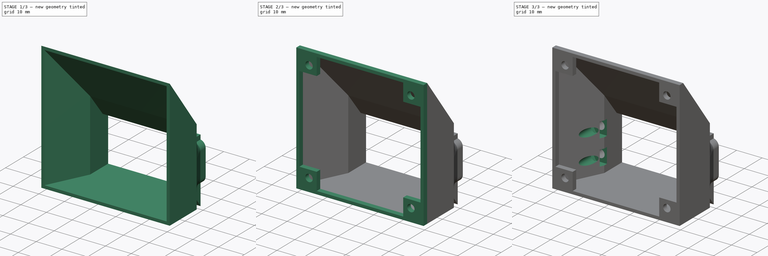
[diagram: build sequence overview — one tinted view per stage of 3, left to right]
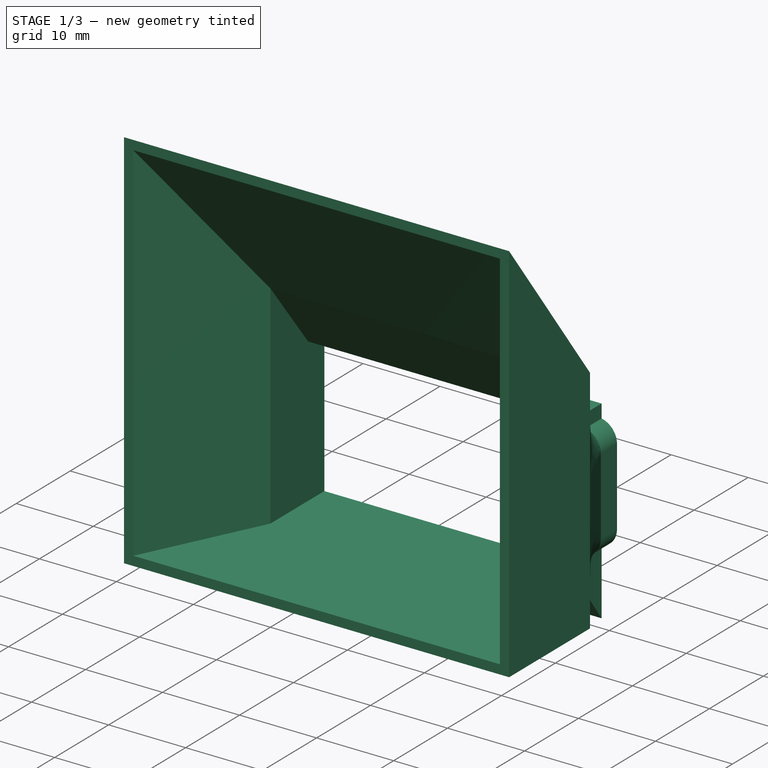
[diagram: stage 1 of 3 — iso view after this stage's code; geometry added in this stage tinted green]
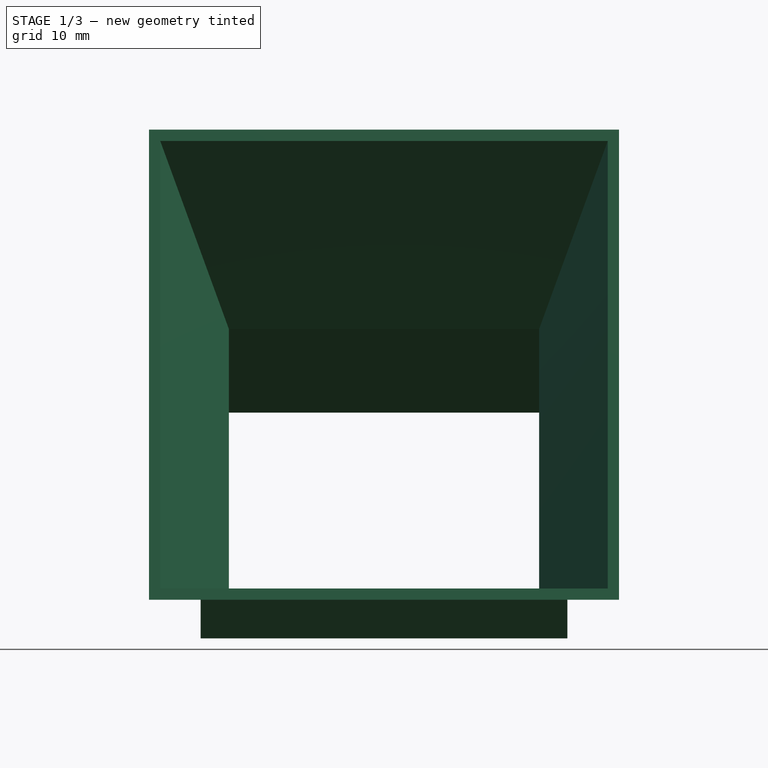
[diagram: stage 1 of 3 — front view after this stage's code; geometry added in this stage tinted green]
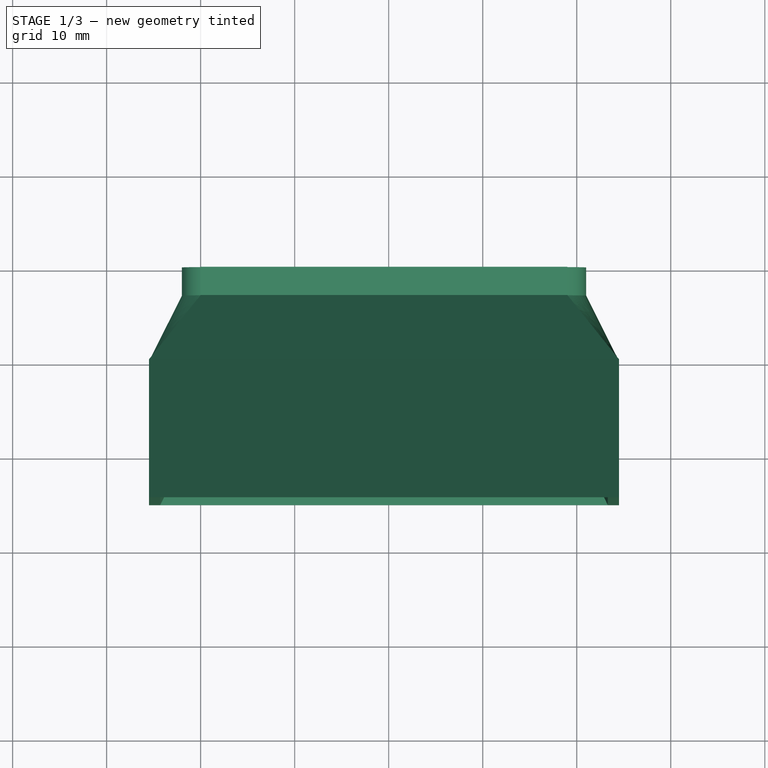
[diagram: stage 1 of 3 — top view after this stage's code; geometry added in this stage tinted green]
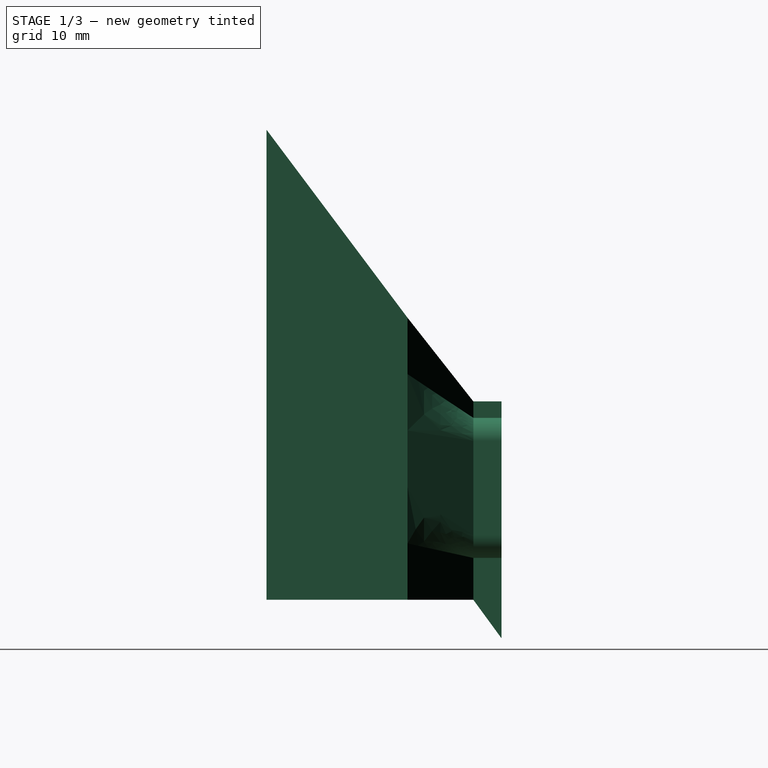
[diagram: stage 1 of 3 — right view after this stage's code; geometry added in this stage tinted green]
FCSTD DOCUMENT  (FreeCAD 0.18R14090 (Git))
Label: HotendClippingMainFan50x50
License: All rights reserved
LicenseURL: http://en.wikipedia.org/wiki/All_rights_reserved
objects: Sketcher::SketchObject×9, PartDesign::Plane×4, PartDesign::AdditiveLoft×3, PartDesign::Pocket×2, PartDesign::Body×1, App::Part×1
note: 24 computed .brp shape members not serialized (recipe doc carries the construction recipe); baked Part::Feature solids carry a one-line shape summary decoded from their .brp

FEATURE [Sketcher::SketchObject] Sketch  label="BaseSketch"
  MapMode = 5
  Placement = pos=(0,0,0) rot=(1,0,0;1.5708rad)
  Support = -> [XZ_Plane001]
  sketch-geometry (31):
    g0: LineSegment StartX=0 StartY=0 StartZ=0 EndX=39 EndY=0 EndZ=0
    g1: LineSegment StartX=39 StartY=25.2 StartZ=0 EndX=0 EndY=25.2 EndZ=0
    g2: LineSegment StartX=3 StartY=24 StartZ=0 EndX=36 EndY=24 EndZ=0
    g3: LineSegment StartX=36 StartY=24 StartZ=0 EndX=36 EndY=5.3 EndZ=0
    g4: LineSegment StartX=36 StartY=5.3 StartZ=0 EndX=3 EndY=5.3 EndZ=0
    g5: LineSegment StartX=3 StartY=5.3 StartZ=0 EndX=3 EndY=24 EndZ=0
    g6: LineSegment [constr] StartX=3 StartY=24 StartZ=0 EndX=0 EndY=24 EndZ=0
    g7: LineSegment [constr] StartX=36 StartY=24 StartZ=0 EndX=39 EndY=24 EndZ=0
    g8: Circle CenterX=0.5 CenterY=21 CenterZ=0 NormalX=0 NormalY=0 NormalZ=1 AngleXU=0 Radius=1.6
    g9: Circle CenterX=0.5 CenterY=11 CenterZ=0 NormalX=0 NormalY=0 NormalZ=1 AngleXU=0 Radius=1.6
    g10: LineSegment [constr] StartX=0.5 StartY=21 StartZ=0 EndX=0.5 EndY=11 EndZ=0
    g11: LineSegment [constr] StartX=0.5 StartY=11 StartZ=0 EndX=0.5 EndY=0 EndZ=0
    g12: LineSegment StartX=-2 StartY=21 StartZ=0 EndX=-2 EndY=11 EndZ=0
    g13: ArcOfCircle CenterX=0.5 CenterY=21 CenterZ=0 NormalX=0 NormalY=0 NormalZ=1 AngleXU=0 Radius=2.5 StartAngle=1.77215 EndAngle=3.14159
    g14: ArcOfCircle CenterX=0.5 CenterY=11 CenterZ=0 NormalX=0 NormalY=0 NormalZ=1 AngleXU=0 Radius=2.5 StartAngle=3.14159 EndAngle=4.51103
    g15: LineSegment StartX=0 StartY=25.2 StartZ=0 EndX=0 EndY=23.4495 EndZ=0
    g16: LineSegment StartX=0 StartY=8.55051 StartZ=0 EndX=0 EndY=0 EndZ=0
    g17: LineSegment [constr] StartX=0.5 StartY=21 StartZ=0 EndX=3 EndY=21 EndZ=0
    g18: LineSegment [constr] StartX=0.5 StartY=21 StartZ=0 EndX=-2 EndY=21 EndZ=0
    g19: Circle CenterX=38.5 CenterY=21 CenterZ=0 NormalX=0 NormalY=0 NormalZ=1 AngleXU=0 Radius=1.6
    g20: Circle CenterX=38.5 CenterY=11 CenterZ=0 NormalX=0 NormalY=0 NormalZ=1 AngleXU=0 Radius=1.6
    g21: LineSegment [constr] StartX=38.5 StartY=11 StartZ=0 EndX=38.5 EndY=21 EndZ=0
    g22: LineSegment StartX=41 StartY=21 StartZ=0 EndX=41 EndY=11 EndZ=0
    g23: LineSegment StartX=39 StartY=25.2 StartZ=0 EndX=39 EndY=23.4495 EndZ=0
    g24: LineSegment StartX=39 StartY=0 StartZ=0 EndX=39 EndY=8.55051 EndZ=0
    g25: ArcOfCircle CenterX=38.5 CenterY=21 CenterZ=0 NormalX=0 NormalY=0 NormalZ=1 AngleXU=0 Radius=2.5 StartAngle=0 EndAngle=1.36944
    g26: ArcOfCircle CenterX=38.5 CenterY=11 CenterZ=0 NormalX=0 NormalY=0 NormalZ=1 AngleXU=0 Radius=2.5 StartAngle=4.91375 EndAngle=6.28319
    g27: LineSegment [constr] StartX=0.5 StartY=11 StartZ=0 EndX=38.5 EndY=11 EndZ=0
    g28: LineSegment [constr] StartX=38.5 StartY=21 StartZ=0 EndX=36 EndY=21 EndZ=0
    g29: LineSegment [constr] StartX=38.5 StartY=21 StartZ=0 EndX=41 EndY=21 EndZ=0
    g30: LineSegment [constr] StartX=39 StartY=23.4495 StartZ=0 EndX=39 EndY=8.55051 EndZ=0
  constraints (86):
    c: Horizontal(g0)
    c: Horizontal(g1)
    c: Coincident(g0,g-1)
    c: Distance(g1) = 39
    c: Coincident(g2,g3)
    c: Coincident(g3,g4)
    c: Coincident(g4,g5)
    c: Coincident(g5,g2)
    c: Horizontal(g2)
    c: Horizontal(g4)
    c: Vertical(g3)
    c: Vertical(g5)
    c: Distance(g4) = 33
    c: Coincident(g6,g2)
    c: Horizontal(g6)
    c: Coincident(g7,g2)
    c: Horizontal(g7)
    c: Equal(g7,g6)
    c: Distance(g4,g0) = 5.3
    c: Distance(g2,g1) = 1.2
    c: Coincident(g10,g8)
    c: Coincident(g10,g9)
    c: Vertical(g10)
    c: Coincident(g11,g9)
    c: PointOnObject(g11,g0)
    c: Vertical(g11)
    c: Distance(g11) = 11
    c: Distance(g10) = 10
    c: Vertical(g12)
    c: Distance(g12,g5) = 5
    c: Coincident(g13,g8)
    c: Coincident(g13,g12)
    c: Coincident(g14,g9)
    c: Coincident(g14,g12)
    c: Coincident(g15,g1)
    c: Coincident(g15,g13)
    c: Coincident(g16,g14)
    c: Coincident(g16,g0)
    c: Vertical(g16)
    c: Vertical(g15)
    c: Coincident(g17,g8)
    c: PointOnObject(g17,g5)
    c: Horizontal(g17)
    c: Coincident(g18,g8)
    c: Horizontal(g18)
    c: PointOnObject(g13,g-2)
    c: Equal(g18,g17)
    c: PointOnObject(g6,g15)
    c: Equal(g13,g14)
    c: Coincident(g12,g18)
    c: Equal(g9,g8)
    c: Radius(g8) = 1.6
    c: Coincident(g21,g20)
    c: Coincident(g21,g19)
    c: Vertical(g21)
    c: Vertical(g22)
    c: Coincident(g23,g1)
    c: Vertical(g23)
    c: Coincident(g24,g0)
    c: Vertical(g24)
    c: Equal(g20,g19)
    c: Equal(g19,g8)
    c: Coincident(g25,g19)
    c: Coincident(g25,g23)
    c: Coincident(g25,g22)
    c: Coincident(g26,g20)
    c: Coincident(g26,g22)
    c: Coincident(g26,g24)
    c: Equal(g21,g10)
    c: Coincident(g27,g9)
    c: Coincident(g27,g20)
    c: Horizontal(g27)
    c: Coincident(g28,g19)
    c: PointOnObject(g28,g3)
    c: Horizontal(g28)
    c: Coincident(g29,g19)
    c: Horizontal(g29)
    c: Equal(g28,g29)
    c: Equal(g25,g26)
    c: Coincident(g22,g29)
    c: PointOnObject(g7,g23)
    c: Distance(g1,g0) = 25.2
    c: Distance(g28,g22) = 5
    c: Coincident(g30,g23)
    c: Coincident(g30,g24)
    c: Vertical(g30)
FEATURE [PartDesign::Plane] DatumPlane  label="Interface1Plane"
  AttachmentOffset = pos=(0,0,3) rot=(0,0,1;0rad)
  MapMode = 5
  Placement = pos=(0,-3,0) rot=(1,0,0;1.5708rad)
  Support = -> [XZ_Plane001]
FEATURE [PartDesign::Plane] DatumPlane001  label="Interface2Plane"
  AttachmentOffset = pos=(-5.5,0,10) rot=(0,0,1;0rad)
  MapMode = 5
  Placement = pos=(-5.5,-10,-1e-12) rot=(1,0,0;1.5708rad)
  Support = -> [XZ_Plane001]
FEATURE [Sketcher::SketchObject] Sketch001  label="Interface1Sketch"
  MapMode = 5
  Placement = pos=(0,-3,0) rot=(1,0,0;1.5708rad)
  Support = -> [DatumPlane]
  sketch-geometry (31):
    g0: LineSegment StartX=39 StartY=25.2 StartZ=0 EndX=1e-12 EndY=25.2 EndZ=0
    g1: LineSegment StartX=3 StartY=24 StartZ=0 EndX=36 EndY=24 EndZ=0
    g2: LineSegment StartX=36 StartY=24 StartZ=0 EndX=36 EndY=5.3 EndZ=0
    g3: LineSegment StartX=36 StartY=5.3 StartZ=0 EndX=3 EndY=5.3 EndZ=0
    g4: LineSegment StartX=3 StartY=5.3 StartZ=0 EndX=3 EndY=24 EndZ=0
    g5: LineSegment [constr] StartX=3 StartY=24 StartZ=0 EndX=0 EndY=24 EndZ=0
    g6: LineSegment [constr] StartX=36 StartY=24 StartZ=0 EndX=39 EndY=24 EndZ=0
    g7: Circle CenterX=0.5 CenterY=21 CenterZ=0 NormalX=0 NormalY=0 NormalZ=1 AngleXU=0 Radius=1.6
    g8: Circle CenterX=0.5 CenterY=11 CenterZ=0 NormalX=0 NormalY=0 NormalZ=1 AngleXU=0 Radius=1.6
    g9: LineSegment [constr] StartX=0.5 StartY=21 StartZ=0 EndX=0.5 EndY=11 EndZ=0
    g10: LineSegment [constr] StartX=0.5 StartY=11 StartZ=0 EndX=0.5 EndY=0 EndZ=0
    g11: LineSegment StartX=-2 StartY=21 StartZ=0 EndX=-2 EndY=11 EndZ=0
    g12: ArcOfCircle CenterX=0.5 CenterY=21 CenterZ=0 NormalX=0 NormalY=0 NormalZ=1 AngleXU=0 Radius=2.5 StartAngle=1.77215 EndAngle=3.14159
    g13: ArcOfCircle CenterX=0.5 CenterY=11 CenterZ=0 NormalX=0 NormalY=0 NormalZ=1 AngleXU=0 Radius=2.5 StartAngle=3.14159 EndAngle=4.51103
    g14: LineSegment StartX=1e-12 StartY=25.2 StartZ=0 EndX=1e-12 EndY=23.4495 EndZ=0
    g15: LineSegment StartX=0 StartY=8.55051 StartZ=0 EndX=0 EndY=4.1 EndZ=0
    g16: LineSegment [constr] StartX=0.5 StartY=21 StartZ=0 EndX=3 EndY=21 EndZ=0
    g17: LineSegment [constr] StartX=0.5 StartY=21 StartZ=0 EndX=-2 EndY=21 EndZ=0
    g18: Circle CenterX=38.5 CenterY=21 CenterZ=0 NormalX=0 NormalY=0 NormalZ=1 AngleXU=0 Radius=1.6
    g19: Circle CenterX=38.5 CenterY=11 CenterZ=0 NormalX=0 NormalY=0 NormalZ=1 AngleXU=0 Radius=1.6
    g20: LineSegment [constr] StartX=38.5 StartY=11 StartZ=0 EndX=38.5 EndY=21 EndZ=0
    g21: LineSegment StartX=41 StartY=21 StartZ=0 EndX=41 EndY=11 EndZ=0
    g22: LineSegment StartX=39 StartY=25.2 StartZ=0 EndX=39 EndY=23.4495 EndZ=0
    g23: LineSegment StartX=39 StartY=4.1 StartZ=0 EndX=39 EndY=8.55051 EndZ=0
    g24: ArcOfCircle CenterX=38.5 CenterY=21 CenterZ=0 NormalX=0 NormalY=0 NormalZ=1 AngleXU=0 Radius=2.5 StartAngle=0 EndAngle=1.36944
    g25: ArcOfCircle CenterX=38.5 CenterY=11 CenterZ=0 NormalX=0 NormalY=0 NormalZ=1 AngleXU=0 Radius=2.5 StartAngle=4.91375 EndAngle=6.28319
    g26: LineSegment [constr] StartX=0.5 StartY=11 StartZ=0 EndX=38.5 EndY=11 EndZ=0
    g27: LineSegment [constr] StartX=38.5 StartY=21 StartZ=0 EndX=36 EndY=21 EndZ=0
    g28: LineSegment [constr] StartX=38.5 StartY=21 StartZ=0 EndX=41 EndY=21 EndZ=0
    g29: LineSegment [constr] StartX=39 StartY=23.4495 StartZ=0 EndX=39 EndY=8.55051 EndZ=0
    g30: LineSegment StartX=0 StartY=4.1 StartZ=0 EndX=39 EndY=4.1 EndZ=0
  constraints (87):
    c: Horizontal(g0)
    c: Distance(g0) = 39
    c: Coincident(g1,g2)
    c: Coincident(g2,g3)
    c: Coincident(g3,g4)
    c: Coincident(g4,g1)
    c: Horizontal(g1)
    c: Horizontal(g3)
    c: Vertical(g2)
    c: Vertical(g4)
    c: Distance(g3) = 33
    c: Coincident(g5,g1)
    c: Horizontal(g5)
    c: Coincident(g6,g1)
    c: Horizontal(g6)
    c: Equal(g6,g5)
    c: Distance(g1,g0) = 1.2
    c: Coincident(g9,g7)
    c: Coincident(g9,g8)
    c: Vertical(g9)
    c: Coincident(g10,g8)
    c: Vertical(g10)
    c: Distance(g9) = 10
    c: Vertical(g11)
    c: Distance(g11,g4) = 5
    c: Coincident(g12,g7)
    c: Coincident(g12,g11)
    c: Coincident(g13,g8)
    c: Coincident(g13,g11)
    c: Coincident(g14,g0)
    c: Coincident(g14,g12)
    c: Coincident(g15,g13)
    c: Vertical(g15)
    c: Vertical(g14)
    c: Coincident(g16,g7)
    c: PointOnObject(g16,g4)
    c: Horizontal(g16)
    c: Coincident(g17,g7)
    c: Horizontal(g17)
    c: PointOnObject(g12,g-2)
    c: Equal(g17,g16)
    c: PointOnObject(g5,g14)
    c: Equal(g12,g13)
    c: Coincident(g11,g17)
    c: Equal(g8,g7)
    c: Radius(g7) = 1.6
    c: Coincident(g20,g19)
    c: Coincident(g20,g18)
    c: Vertical(g20)
    c: Vertical(g21)
    c: Coincident(g22,g0)
    c: Vertical(g22)
    c: Vertical(g23)
    c: Equal(g19,g18)
    c: Equal(g18,g7)
    c: Coincident(g24,g18)
    c: Coincident(g24,g22)
    c: Coincident(g24,g21)
    c: Coincident(g25,g19)
    c: Coincident(g25,g21)
    c: Coincident(g25,g23)
    c: Equal(g20,g9)
    c: Coincident(g26,g8)
    c: Coincident(g26,g19)
    c: Horizontal(g26)
    c: Coincident(g27,g18)
    c: PointOnObject(g27,g2)
    c: Horizontal(g27)
    c: Coincident(g28,g18)
    c: Horizontal(g28)
    c: Equal(g27,g28)
    c: Equal(g24,g25)
    c: Coincident(g21,g28)
    c: PointOnObject(g6,g22)
    c: Distance(g27,g21) = 5
    c: Coincident(g29,g22)
    c: Coincident(g29,g23)
    c: Vertical(g29)
    c: Horizontal(g30)
    c: Distance(g3,g30) = 1.2
    c: Coincident(g23,g30)
    c: Coincident(g15,g30)
    c: DistanceY(g-1,g0) = 25.2
    c: PointOnObject(g15,g-2)
    c: DistanceY(g-1,g8) = 11
    c: DistanceY(g-1,g3) = 5.3
    c: PointOnObject(g10,g-1)
FEATURE [Sketcher::SketchObject] Sketch002  label="Interface2Sketch"
  MapMode = 5
  Placement = pos=(-5.5,-10,-1e-12) rot=(1,0,0;1.5708rad)
  Support = -> [DatumPlane001]
  sketch-geometry (28):
    g0: LineSegment StartX=50 StartY=34.1 StartZ=0 EndX=0 EndY=34.1 EndZ=0
    g1: LineSegment StartX=8.5 StartY=32.9 StartZ=0 EndX=41.5 EndY=32.9 EndZ=0
    g2: LineSegment StartX=41.5 StartY=32.9 StartZ=0 EndX=41.5 EndY=5.3 EndZ=0
    g3: LineSegment StartX=41.5 StartY=5.3 StartZ=0 EndX=8.5 EndY=5.3 EndZ=0
    g4: LineSegment StartX=8.5 StartY=5.3 StartZ=0 EndX=8.5 EndY=32.9 EndZ=0
    g5: LineSegment [constr] StartX=8.5 StartY=32.9 StartZ=0 EndX=0 EndY=32.9 EndZ=0
    g6: LineSegment [constr] StartX=41.5 StartY=32.9 StartZ=0 EndX=50 EndY=32.9 EndZ=0
    g7: Circle CenterX=6 CenterY=21 CenterZ=0 NormalX=0 NormalY=0 NormalZ=1 AngleXU=0 Radius=1.6
    g8: Circle CenterX=6 CenterY=11 CenterZ=0 NormalX=0 NormalY=0 NormalZ=1 AngleXU=0 Radius=1.6
    g9: LineSegment [constr] StartX=6 StartY=21 StartZ=0 EndX=6 EndY=11 EndZ=0
    g10: LineSegment [constr] StartX=6 StartY=11 StartZ=0 EndX=6 EndY=0 EndZ=0
    g11: LineSegment StartX=0 StartY=22.1 StartZ=0 EndX=0 EndY=16.1 EndZ=0
    g12: LineSegment StartX=0 StartY=34.1 StartZ=0 EndX=0 EndY=28.1 EndZ=0
    g13: LineSegment StartX=0 StartY=10.1 StartZ=0 EndX=0 EndY=4.1 EndZ=0
    g14: LineSegment [constr] StartX=6 StartY=21 StartZ=0 EndX=8.5 EndY=21 EndZ=0
    g15: Circle CenterX=44 CenterY=21 CenterZ=0 NormalX=0 NormalY=0 NormalZ=1 AngleXU=0 Radius=1.6
    g16: Circle CenterX=44 CenterY=11 CenterZ=0 NormalX=0 NormalY=0 NormalZ=1 AngleXU=0 Radius=1.6
    g17: LineSegment [constr] StartX=44 StartY=11 StartZ=0 EndX=44 EndY=21 EndZ=0
    g18: LineSegment StartX=50 StartY=22.1 StartZ=0 EndX=50 EndY=16.1 EndZ=0
    g19: LineSegment StartX=50 StartY=34.1 StartZ=0 EndX=50 EndY=28.1 EndZ=0
    g20: LineSegment StartX=50 StartY=4.1 StartZ=0 EndX=50 EndY=10.1 EndZ=0
    g21: LineSegment [constr] StartX=6 StartY=11 StartZ=0 EndX=44 EndY=11 EndZ=0
    g22: LineSegment [constr] StartX=44 StartY=21 StartZ=0 EndX=41.5 EndY=21 EndZ=0
    g23: LineSegment StartX=0 StartY=4.1 StartZ=0 EndX=50 EndY=4.1 EndZ=0
    g24: LineSegment StartX=50 StartY=28.1 StartZ=0 EndX=50 EndY=22.1 EndZ=0
    g25: LineSegment StartX=50 StartY=16.1 StartZ=0 EndX=50 EndY=10.1 EndZ=0
    g26: LineSegment StartX=0 StartY=10.1 StartZ=0 EndX=0 EndY=16.1 EndZ=0
    g27: LineSegment StartX=0 StartY=22.1 StartZ=0 EndX=0 EndY=28.1 EndZ=0
  constraints (81):
    c: Horizontal(g0)
    c: Distance(g0) = 50
    c: Coincident(g1,g2)
    c: Coincident(g2,g3)
    c: Coincident(g3,g4)
    c: Coincident(g4,g1)
    c: Horizontal(g1)
    c: Horizontal(g3)
    c: Vertical(g2)
    c: Vertical(g4)
    c: Distance(g3) = 33
    c: Coincident(g5,g1)
    c: Horizontal(g5)
    c: Coincident(g6,g1)
    c: Horizontal(g6)
    c: Equal(g6,g5)
    c: Distance(g1,g0) = 1.2
    c: Coincident(g9,g7)
    c: Coincident(g9,g8)
    c: Vertical(g9)
    c: Coincident(g10,g8)
    c: Vertical(g10)
    c: Distance(g9) = 10
    c: Coincident(g12,g0)
    c: Vertical(g13)
    c: Vertical(g12)
    c: Coincident(g14,g7)
    c: PointOnObject(g14,g4)
    c: Horizontal(g14)
    c: PointOnObject(g12,g-2)
    c: PointOnObject(g5,g12)
    c: Equal(g8,g7)
    c: Radius(g7) = 1.6
    c: Coincident(g17,g16)
    c: Coincident(g17,g15)
    c: Vertical(g17)
    c: Coincident(g19,g0)
    c: Vertical(g19)
    c: Vertical(g20)
    c: Equal(g16,g15)
    c: Equal(g15,g7)
    c: Equal(g17,g9)
    c: Coincident(g21,g8)
    c: Coincident(g21,g16)
    c: Horizontal(g21)
    c: Coincident(g22,g15)
    c: PointOnObject(g22,g2)
    c: Horizontal(g22)
    c: PointOnObject(g6,g19)
    c: Horizontal(g23)
    c: Distance(g3,g23) = 1.2
    c: Coincident(g20,g23)
    c: Coincident(g13,g23)
    c: PointOnObject(g13,g-2)
    c: DistanceY(g-1,g8) = 11
    c: DistanceY(g-1,g3) = 5.3
    c: PointOnObject(g10,g-1)
    c: Equal(g22,g14)
    c: Distance(g22) = 2.5
    c: Coincident(g24,g19)
    c: Coincident(g24,g18)
    c: Coincident(g25,g18)
    c: Coincident(g25,g20)
    c: Coincident(g26,g13)
    c: Coincident(g26,g11)
    c: Coincident(g27,g11)
    c: Coincident(g27,g12)
    c: Equal(g19,g12)
    c: Equal(g12,g27)
    c: Equal(g27,g24)
    c: Equal(g24,g18)
    c: Equal(g18,g25)
    c: Equal(g25,g20)
    c: Equal(g20,g13)
    c: Equal(g13,g26)
    c: Equal(g26,g11)
    c: Vertical(g18)
    c: Vertical(g11)
    c: Vertical(g25)
    c: Vertical(g26)
    c: Distance(g0,g20) = 30
FEATURE [PartDesign::AdditiveLoft] AdditiveLoft  label="BaseLoft"
  Closed = false
  Placement = pos=(0,0,0) rot=(1,0,0;1.5708rad)
  Profile = -> Sketch
  Ruled = true
  Sections = -> [Sketch001,Sketch002]
FEATURE [Sketcher::SketchObject] Sketch003  label="Interface3Sketch"
  ExternalGeometry = -> [Sketch002]
  MapMode = 5
  Placement = pos=(-5.5,-10,-1e-12) rot=(1,0,0;1.5708rad)
  Support = -> [DatumPlane001]
  sketch-geometry (8):
    g0: LineSegment StartX=8.5 StartY=32.9 StartZ=0 EndX=41.5 EndY=32.9 EndZ=0
    g1: LineSegment StartX=41.5 StartY=5.3 StartZ=0 EndX=8.5 EndY=5.3 EndZ=0
    g2: LineSegment StartX=0 StartY=4.1 StartZ=0 EndX=0 EndY=34.1 EndZ=0
    g3: LineSegment StartX=0 StartY=34.1 StartZ=0 EndX=50 EndY=34.1 EndZ=0
    g4: LineSegment StartX=50 StartY=34.1 StartZ=0 EndX=50 EndY=4.1 EndZ=0
    g5: LineSegment StartX=50 StartY=4.1 StartZ=0 EndX=0 EndY=4.1 EndZ=0
    g6: LineSegment StartX=8.5 StartY=32.9 StartZ=0 EndX=8.5 EndY=5.3 EndZ=0
    g7: LineSegment StartX=41.5 StartY=5.3 StartZ=0 EndX=41.5 EndY=32.9 EndZ=0
  constraints (16):
    c: Coincident(g0,g-6)
    c: Coincident(g0,g-8)
    c: Coincident(g1,g-8)
    c: Coincident(g1,g-7)
    c: Coincident(g2,g-4)
    c: Coincident(g2,g-3)
    c: Coincident(g3,g2)
    c: Coincident(g3,g-3)
    c: Coincident(g4,g3)
    c: Coincident(g4,g-4)
    c: Coincident(g5,g4)
    c: Coincident(g5,g2)
    c: Coincident(g6,g0)
    c: Coincident(g6,g1)
    c: Coincident(g7,g1)
    c: Coincident(g7,g0)
FEATURE [PartDesign::Plane] DatumPlane002  label="Interface3Plane"
  AttachmentOffset = pos=(-5.5,0,25) rot=(0,0,1;0rad)
  MapMode = 5
  Placement = pos=(-5.5,-25,-3e-12) rot=(1,0,0;1.5708rad)
  Support = -> [XZ_Plane001]
FEATURE [PartDesign::Plane] DatumPlane003  label="Interface4Plane"
  AttachmentOffset = pos=(-5.5,0,27) rot=(0,0,1;0rad)
  MapMode = 5
  Placement = pos=(-5.5,-27,-3e-12) rot=(1,0,0;1.5708rad)
  Support = -> [XZ_Plane001]
FEATURE [Sketcher::SketchObject] Sketch007  label="Interface4Sketch"
  ExternalGeometry = -> [Sketch002]
  MapMode = 5
  Placement = pos=(-5.5,-25,-3e-12) rot=(1,0,0;1.5708rad)
  Support = -> [DatumPlane002]
  sketch-geometry (12):
    g0: LineSegment StartX=48.8 StartY=5.3 StartZ=0 EndX=1.2 EndY=5.3 EndZ=0
    g1: LineSegment StartX=0 StartY=4.1 StartZ=0 EndX=0 EndY=54.1 EndZ=0
    g2: LineSegment StartX=0 StartY=54.1 StartZ=0 EndX=50 EndY=54.1 EndZ=0
    g3: LineSegment StartX=50 StartY=54.1 StartZ=0 EndX=50 EndY=4.1 EndZ=0
    g4: LineSegment StartX=50 StartY=4.1 StartZ=0 EndX=0 EndY=4.1 EndZ=0
    g5: LineSegment StartX=1.2 StartY=52.9 StartZ=0 EndX=1.2 EndY=5.3 EndZ=0
    g6: LineSegment StartX=48.8 StartY=5.3 StartZ=0 EndX=48.8 EndY=52.9 EndZ=0
    g7: LineSegment [constr] StartX=48.8 StartY=5.3 StartZ=0 EndX=48.8 EndY=4.1 EndZ=0
    g8: LineSegment [constr] StartX=48.8 StartY=52.9 StartZ=0 EndX=48.8 EndY=54.1 EndZ=0
    g9: LineSegment StartX=1.2 StartY=52.9 StartZ=0 EndX=48.8 EndY=52.9 EndZ=0
    g10: LineSegment [constr] StartX=48.8 StartY=5.3 StartZ=0 EndX=50 EndY=5.3 EndZ=0
    g11: LineSegment [constr] StartX=1.2 StartY=5.3 StartZ=0 EndX=0 EndY=5.3 EndZ=0
  constraints (34):
    c: Coincident(g1,g-3)
    c: Coincident(g2,g1)
    c: Coincident(g3,g2)
    c: Coincident(g3,g-3)
    c: Coincident(g4,g3)
    c: Coincident(g4,g1)
    c: Vertical(g3)
    c: Vertical(g1)
    c: Vertical(g6)
    c: Vertical(g5)
    c: Horizontal(g2)
    c: Distance(g3) = 50
    c: Coincident(g7,g0)
    c: PointOnObject(g7,g4)
    c: Vertical(g7)
    c: Vertical(g8)
    c: Equal(g7,g8)
    c: PointOnObject(g8,g2)
    c: PointOnObject(g0,g-4)
    c: Horizontal(g0)
    c: Coincident(g5,g0)
    c: Coincident(g0,g6)
    c: Coincident(g9,g5)
    c: Coincident(g9,g6)
    c: Horizontal(g9)
    c: Coincident(g8,g6)
    c: Coincident(g10,g0)
    c: PointOnObject(g10,g3)
    c: Horizontal(g10)
    c: Coincident(g11,g0)
    c: PointOnObject(g11,g1)
    c: Horizontal(g11)
    c: Equal(g11,g10)
    c: Equal(g10,g7)
FEATURE [Sketcher::SketchObject] Sketch008  label="Interface5Sketch"
  MapMode = 5
  Placement = pos=(-5.5,-25,-3e-12) rot=(1,0,0;1.5708rad)
  Support = -> [DatumPlane002]
  sketch-geometry (32):
    g0: LineSegment StartX=0 StartY=4.1 StartZ=0 EndX=0 EndY=54.1 EndZ=0
    g1: LineSegment StartX=0 StartY=54.1 StartZ=0 EndX=50 EndY=54.1 EndZ=0
    g2: LineSegment StartX=50 StartY=54.1 StartZ=0 EndX=50 EndY=4.1 EndZ=0
    g3: LineSegment StartX=50 StartY=4.1 StartZ=0 EndX=0 EndY=4.1 EndZ=0
    g4: Circle CenterX=5 CenterY=49.1 CenterZ=0 NormalX=0 NormalY=0 NormalZ=1 AngleXU=0 Radius=1.45
    g5: Circle CenterX=45 CenterY=49.1 CenterZ=0 NormalX=0 NormalY=0 NormalZ=1 AngleXU=0 Radius=1.45
    g6: Circle CenterX=45 CenterY=9.1 CenterZ=0 NormalX=0 NormalY=0 NormalZ=1 AngleXU=0 Radius=1.45
    g7: Circle CenterX=5 CenterY=9.1 CenterZ=0 NormalX=0 NormalY=0 NormalZ=1 AngleXU=0 Radius=1.45
    g8: LineSegment StartX=1.2 StartY=12.1 StartZ=0 EndX=8 EndY=12.1 EndZ=0
    g9: LineSegment StartX=8 StartY=12.1 StartZ=0 EndX=8 EndY=5.3 EndZ=0
    g10: LineSegment StartX=8 StartY=5.3 StartZ=0 EndX=42 EndY=5.3 EndZ=0
    g11: LineSegment StartX=42 StartY=5.3 StartZ=0 EndX=42 EndY=12.1 EndZ=0
    g12: LineSegment StartX=42 StartY=12.1 StartZ=0 EndX=48.8 EndY=12.1 EndZ=0
    g13: LineSegment StartX=48.8 StartY=12.1 StartZ=0 EndX=48.8 EndY=46.1 EndZ=0
    g14: LineSegment StartX=48.8 StartY=46.1 StartZ=0 EndX=42 EndY=46.1 EndZ=0
    g15: LineSegment StartX=42 StartY=46.1 StartZ=0 EndX=42 EndY=52.9 EndZ=0
    g16: LineSegment StartX=42 StartY=52.9 StartZ=0 EndX=8 EndY=52.9 EndZ=0
    g17: LineSegment StartX=8 StartY=52.9 StartZ=0 EndX=8 EndY=46.1 EndZ=0
    g18: LineSegment StartX=8 StartY=46.1 StartZ=0 EndX=1.2 EndY=46.1 EndZ=0
    g19: LineSegment StartX=1.2 StartY=46.1 StartZ=0 EndX=1.2 EndY=12.1 EndZ=0
    g20: LineSegment [constr] StartX=5 StartY=9.1 StartZ=0 EndX=0 EndY=9.1 EndZ=0
    g21: LineSegment [constr] StartX=5 StartY=9.1 StartZ=0 EndX=5 EndY=4.1 EndZ=0
    g22: LineSegment [constr] StartX=45 StartY=9.1 StartZ=0 EndX=45 EndY=4.1 EndZ=0
    g23: LineSegment [constr] StartX=45 StartY=9.1 StartZ=0 EndX=50 EndY=9.1 EndZ=0
    g24: LineSegment [constr] StartX=45 StartY=49.1 StartZ=0 EndX=45 EndY=54.1 EndZ=0
    g25: LineSegment [constr] StartX=45 StartY=49.1 StartZ=0 EndX=50 EndY=49.1 EndZ=0
    g26: LineSegment [constr] StartX=5 StartY=49.1 StartZ=0 EndX=0 EndY=49.1 EndZ=0
    g27: LineSegment [constr] StartX=5 StartY=49.1 StartZ=0 EndX=5 EndY=54.1 EndZ=0
    g28: LineSegment [constr] StartX=1.2 StartY=12.1 StartZ=0 EndX=0 EndY=12.1 EndZ=0
    g29: LineSegment [constr] StartX=8 StartY=5.3 StartZ=0 EndX=8 EndY=4.1 EndZ=0
    g30: LineSegment [constr] StartX=8 StartY=52.9 StartZ=0 EndX=8 EndY=54.1 EndZ=0
    g31: LineSegment [constr] StartX=5 StartY=9.1 StartZ=0 EndX=8 EndY=9.1 EndZ=0
FEATURE [Sketcher::SketchObject] Sketch009  label="Interface6Sketch"
  MapMode = 5
  Placement = pos=(-5.5,-27,-3e-12) rot=(1,0,0;1.5708rad)
  Support = -> [DatumPlane003]
  sketch-geometry (32):
    g0: LineSegment StartX=0 StartY=4.1 StartZ=0 EndX=0 EndY=54.1 EndZ=0
    g1: LineSegment StartX=0 StartY=54.1 StartZ=0 EndX=50 EndY=54.1 EndZ=0
    g2: LineSegment StartX=50 StartY=54.1 StartZ=0 EndX=50 EndY=4.1 EndZ=0
    g3: LineSegment StartX=50 StartY=4.1 StartZ=0 EndX=0 EndY=4.1 EndZ=0
    g4: Circle CenterX=5 CenterY=49.1 CenterZ=0 NormalX=0 NormalY=0 NormalZ=1 AngleXU=0 Radius=1.45
    g5: Circle CenterX=45 CenterY=49.1 CenterZ=0 NormalX=0 NormalY=0 NormalZ=1 AngleXU=0 Radius=1.45
    g6: Circle CenterX=45 CenterY=9.1 CenterZ=0 NormalX=0 NormalY=0 NormalZ=1 AngleXU=0 Radius=1.45
    g7: Circle CenterX=5 CenterY=9.1 CenterZ=0 NormalX=0 NormalY=0 NormalZ=1 AngleXU=0 Radius=1.45
    g8: LineSegment StartX=1.2 StartY=12.1 StartZ=0 EndX=8 EndY=12.1 EndZ=0
    g9: LineSegment StartX=8 StartY=12.1 StartZ=0 EndX=8 EndY=5.3 EndZ=0
    g10: LineSegment StartX=8 StartY=5.3 StartZ=0 EndX=42 EndY=5.3 EndZ=0
    g11: LineSegment StartX=42 StartY=5.3 StartZ=0 EndX=42 EndY=12.1 EndZ=0
    g12: LineSegment StartX=42 StartY=12.1 StartZ=0 EndX=48.8 EndY=12.1 EndZ=0
    g13: LineSegment StartX=48.8 StartY=12.1 StartZ=0 EndX=48.8 EndY=46.1 EndZ=0
    g14: LineSegment StartX=48.8 StartY=46.1 StartZ=0 EndX=42 EndY=46.1 EndZ=0
    g15: LineSegment StartX=42 StartY=46.1 StartZ=0 EndX=42 EndY=52.9 EndZ=0
    g16: LineSegment StartX=42 StartY=52.9 StartZ=0 EndX=8 EndY=52.9 EndZ=0
    g17: LineSegment StartX=8 StartY=52.9 StartZ=0 EndX=8 EndY=46.1 EndZ=0
    g18: LineSegment StartX=8 StartY=46.1 StartZ=0 EndX=1.2 EndY=46.1 EndZ=0
    g19: LineSegment StartX=1.2 StartY=46.1 StartZ=0 EndX=1.2 EndY=12.1 EndZ=0
    g20: LineSegment [constr] StartX=5 StartY=9.1 StartZ=0 EndX=0 EndY=9.1 EndZ=0
    g21: LineSegment [constr] StartX=5 StartY=9.1 StartZ=0 EndX=5 EndY=4.1 EndZ=0
    g22: LineSegment [constr] StartX=45 StartY=9.1 StartZ=0 EndX=45 EndY=4.1 EndZ=0
    g23: LineSegment [constr] StartX=45 StartY=9.1 StartZ=0 EndX=50 EndY=9.1 EndZ=0
    g24: LineSegment [constr] StartX=45 StartY=49.1 StartZ=0 EndX=45 EndY=54.1 EndZ=0
    g25: LineSegment [constr] StartX=45 StartY=49.1 StartZ=0 EndX=50 EndY=49.1 EndZ=0
    g26: LineSegment [constr] StartX=5 StartY=49.1 StartZ=0 EndX=0 EndY=49.1 EndZ=0
    g27: LineSegment [constr] StartX=5 StartY=49.1 StartZ=0 EndX=5 EndY=54.1 EndZ=0
    g28: LineSegment [constr] StartX=1.2 StartY=12.1 StartZ=0 EndX=0 EndY=12.1 EndZ=0
    g29: LineSegment [constr] StartX=8 StartY=5.3 StartZ=0 EndX=8 EndY=4.1 EndZ=0
    g30: LineSegment [constr] StartX=8 StartY=52.9 StartZ=0 EndX=8 EndY=54.1 EndZ=0
    g31: LineSegment [constr] StartX=5 StartY=9.1 StartZ=0 EndX=8 EndY=9.1 EndZ=0
FEATURE [PartDesign::AdditiveLoft] AdditiveLoft001  label="FanShroudLoft"
  BaseFeature = -> AdditiveLoft
  Closed = false
  Placement = pos=(0,0,0) rot=(1,0,0;1.5708rad)
  Profile = -> Sketch003
  Ruled = true
  Sections = -> [Sketch007]
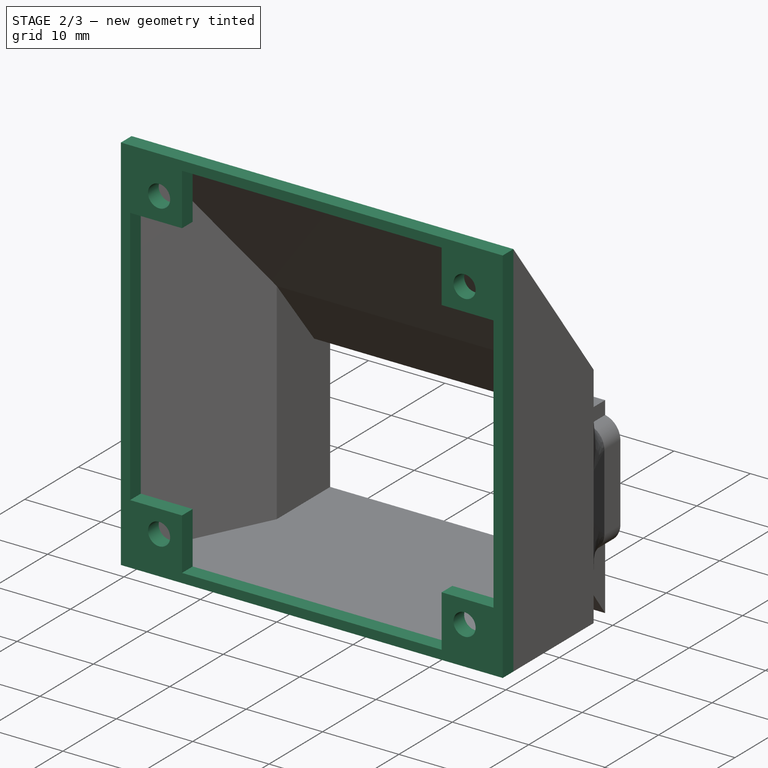
[diagram: stage 2 of 3 — iso view after this stage's code; geometry added in this stage tinted green]
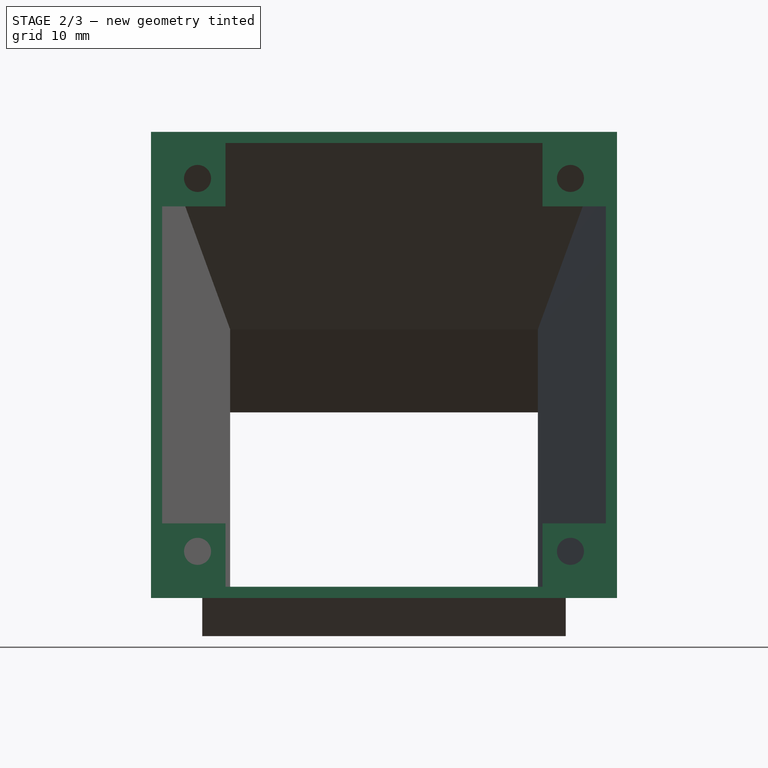
[diagram: stage 2 of 3 — front view after this stage's code; geometry added in this stage tinted green]
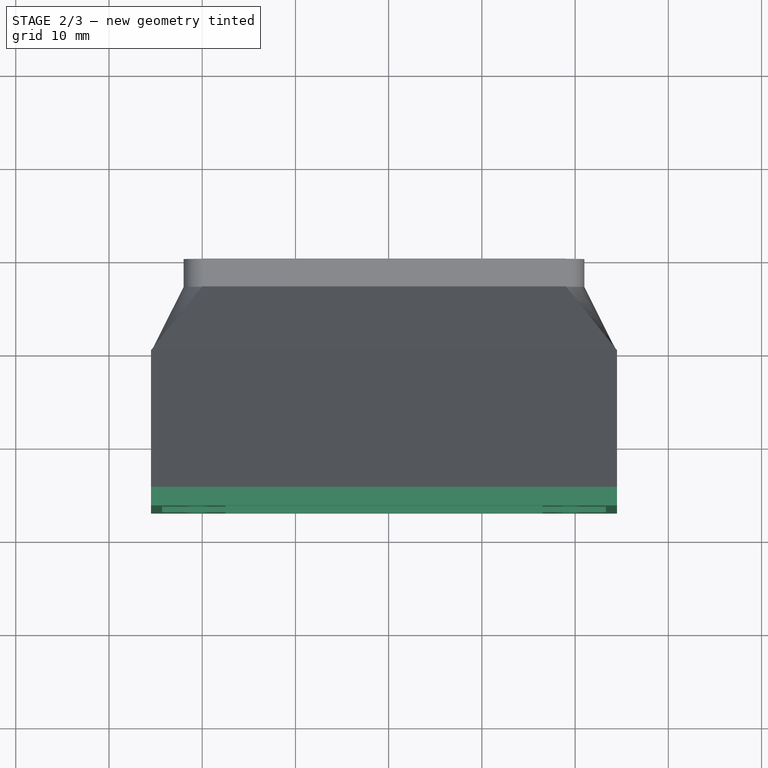
[diagram: stage 2 of 3 — top view after this stage's code; geometry added in this stage tinted green]
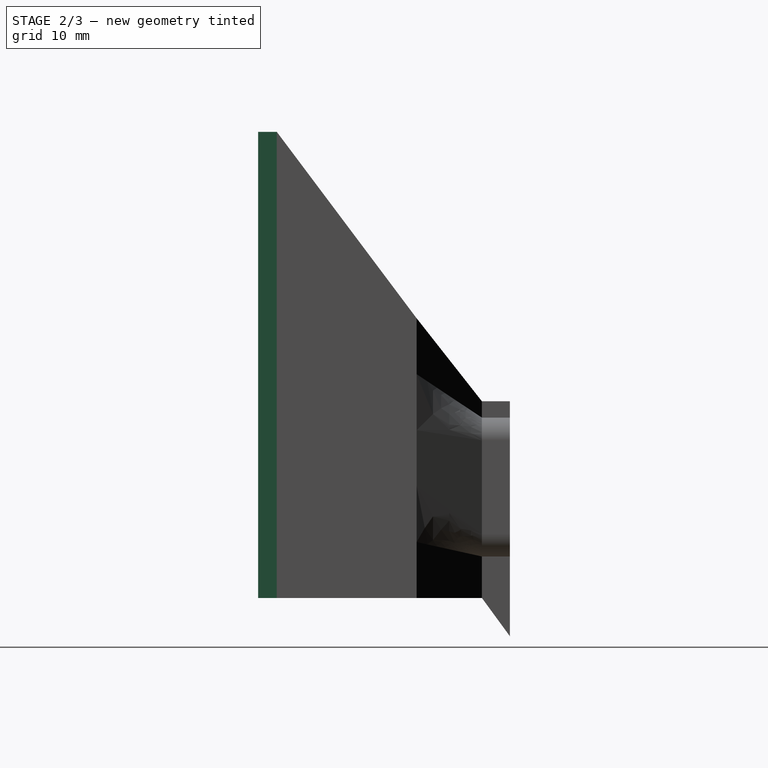
[diagram: stage 2 of 3 — right view after this stage's code; geometry added in this stage tinted green]
FEATURE [PartDesign::AdditiveLoft] AdditiveLoft002  label="FanClippingLoft"
  BaseFeature = -> AdditiveLoft001
  Closed = false
  Placement = pos=(0,0,0) rot=(1,0,0;1.5708rad)
  Profile = -> Sketch008
  Ruled = true
  Sections = -> [Sketch009]
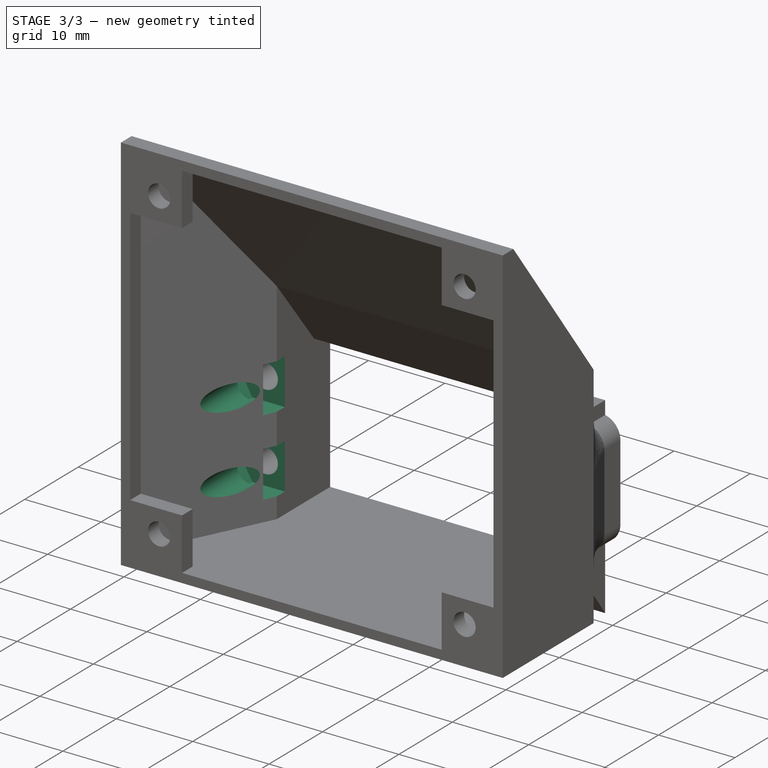
[diagram: stage 3 of 3 — iso view after this stage's code; geometry added in this stage tinted green]
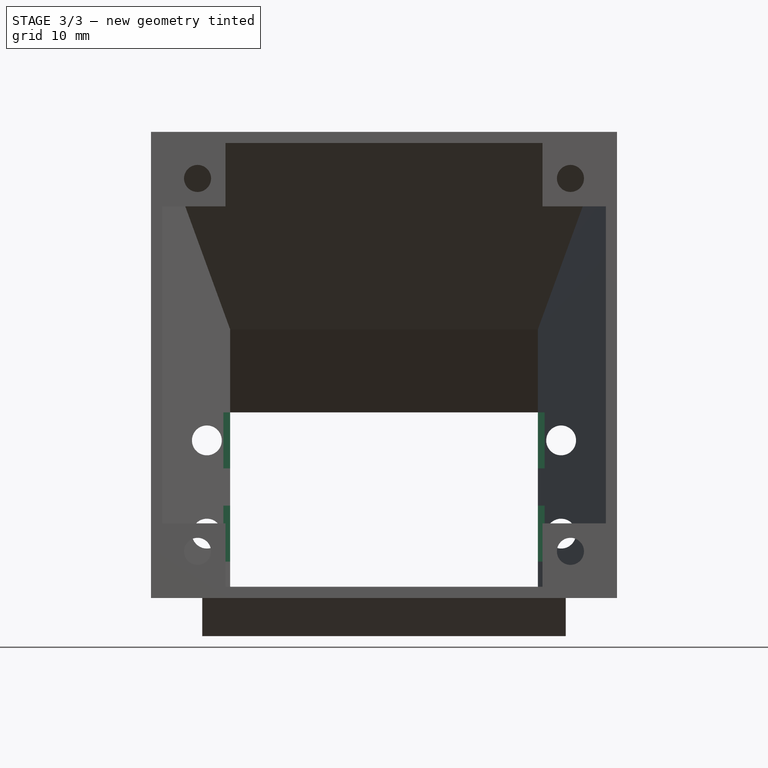
[diagram: stage 3 of 3 — front view after this stage's code; geometry added in this stage tinted green]
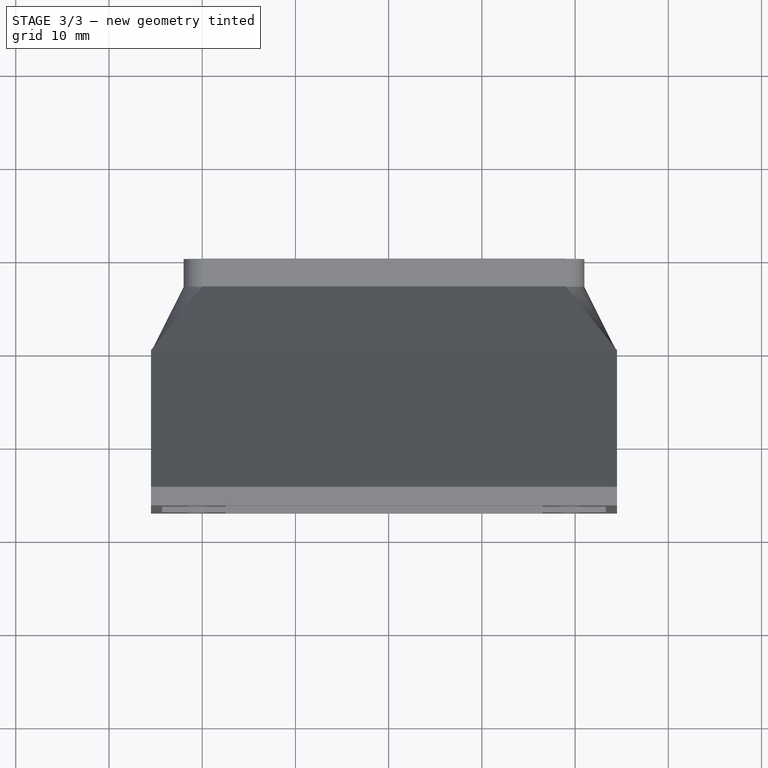
[diagram: stage 3 of 3 — top view after this stage's code; geometry added in this stage tinted green]
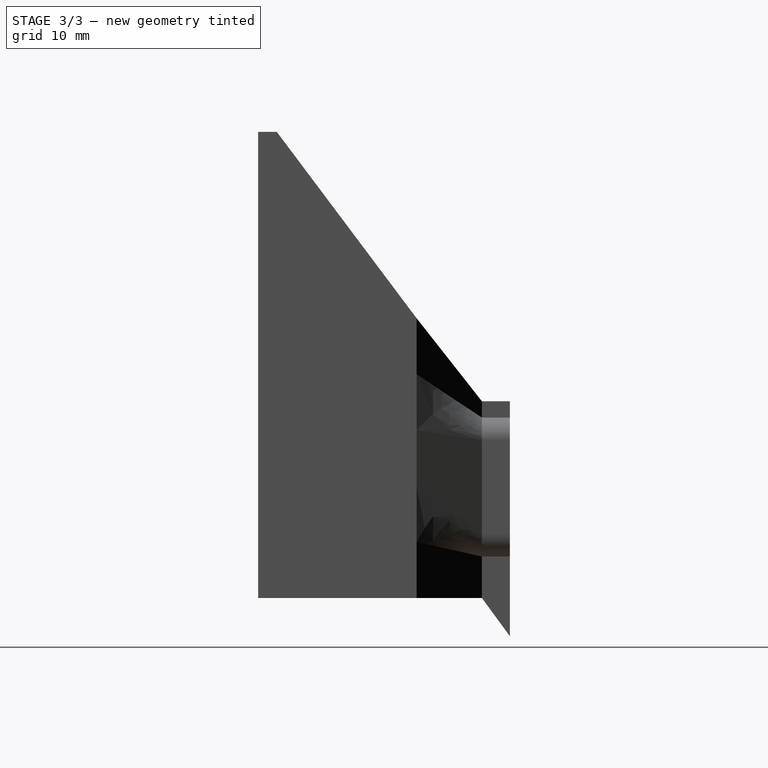
[diagram: stage 3 of 3 — right view after this stage's code; geometry added in this stage tinted green]
FEATURE [Sketcher::SketchObject] Sketch010  label="NutHolesSketch"
  ExternalGeometry = -> [Sketch001]
  MapMode = 5
  Placement = pos=(-5.5,-10,-1e-12) rot=(1,0,0;1.5708rad)
  Support = -> [DatumPlane001]
  sketch-geometry (32):
    g0: LineSegment [constr] StartX=9.4641 StartY=21 StartZ=0 EndX=7.73205 EndY=24 EndZ=0
    g1: LineSegment StartX=7.73205 StartY=24 StartZ=0 EndX=4.26795 EndY=24 EndZ=0
    g2: LineSegment StartX=4.26795 StartY=24 StartZ=0 EndX=2.5359 EndY=21 EndZ=0
    g3: LineSegment StartX=2.5359 StartY=21 StartZ=0 EndX=4.26795 EndY=18 EndZ=0
    g4: LineSegment StartX=4.26795 StartY=18 StartZ=0 EndX=7.73205 EndY=18 EndZ=0
    g5: LineSegment [constr] StartX=7.73205 StartY=18 StartZ=0 EndX=9.4641 EndY=21 EndZ=0
    g6: Circle [constr] CenterX=6 CenterY=21 CenterZ=0 NormalX=0 NormalY=0 NormalZ=1 AngleXU=0 Radius=3.4641
    g7: LineSegment [constr] StartX=9.4641 StartY=11 StartZ=0 EndX=7.73205 EndY=14 EndZ=0
    g8: LineSegment StartX=7.73205 StartY=14 StartZ=0 EndX=4.26795 EndY=14 EndZ=0
    g9: LineSegment StartX=4.26795 StartY=14 StartZ=0 EndX=2.5359 EndY=11 EndZ=0
    g10: LineSegment StartX=2.5359 StartY=11 StartZ=0 EndX=4.26795 EndY=8 EndZ=0
    g11: LineSegment StartX=4.26795 StartY=8 StartZ=0 EndX=7.73205 EndY=8 EndZ=0
    g12: LineSegment [constr] StartX=7.73205 StartY=8 StartZ=0 EndX=9.4641 EndY=11 EndZ=0
    g13: Circle [constr] CenterX=6 CenterY=11 CenterZ=0 NormalX=0 NormalY=0 NormalZ=1 AngleXU=0 Radius=3.4641
    g14: LineSegment StartX=42.2679 StartY=8 StartZ=0 EndX=45.7321 EndY=8 EndZ=0
    g15: LineSegment StartX=45.7321 StartY=8 StartZ=0 EndX=47.4641 EndY=11 EndZ=0
    g16: LineSegment StartX=47.4641 StartY=11 StartZ=0 EndX=45.7321 EndY=14 EndZ=0
    g17: LineSegment StartX=45.7321 StartY=14 StartZ=0 EndX=42.2679 EndY=14 EndZ=0
    g18: LineSegment [constr] StartX=42.2679 StartY=14 StartZ=0 EndX=40.5359 EndY=11 EndZ=0
    g19: LineSegment [constr] StartX=40.5359 StartY=11 StartZ=0 EndX=42.2679 EndY=8 EndZ=0
    g20: Circle [constr] CenterX=44 CenterY=11 CenterZ=0 NormalX=0 NormalY=0 NormalZ=1 AngleXU=0 Radius=3.4641
    g21: LineSegment StartX=42.2679 StartY=18 StartZ=0 EndX=45.7321 EndY=18 EndZ=0
    g22: LineSegment StartX=45.7321 StartY=18 StartZ=0 EndX=47.4641 EndY=21 EndZ=0
    g23: LineSegment StartX=47.4641 StartY=21 StartZ=0 EndX=45.7321 EndY=24 EndZ=0
    g24: LineSegment StartX=45.7321 StartY=24 StartZ=0 EndX=42.2679 EndY=24 EndZ=0
    g25: LineSegment [constr] StartX=42.2679 StartY=24 StartZ=0 EndX=40.5359 EndY=21 EndZ=0
    g26: LineSegment [constr] StartX=40.5359 StartY=21 StartZ=0 EndX=42.2679 EndY=18 EndZ=0
    g27: Circle [constr] CenterX=44 CenterY=21 CenterZ=0 NormalX=0 NormalY=0 NormalZ=1 AngleXU=0 Radius=3.4641
    g28: LineSegment StartX=7.73205 StartY=24 StartZ=0 EndX=42.2679 EndY=24 EndZ=0
    g29: LineSegment StartX=7.73205 StartY=18 StartZ=0 EndX=42.2679 EndY=18 EndZ=0
    g30: LineSegment StartX=7.73205 StartY=14 StartZ=0 EndX=42.2679 EndY=14 EndZ=0
    g31: LineSegment StartX=7.73205 StartY=8 StartZ=0 EndX=42.2679 EndY=8 EndZ=0
  constraints (72):
    c: Coincident(g0,g1)
    c: Coincident(g1,g2)
    c: Coincident(g2,g3)
    c: Coincident(g3,g4)
    c: Coincident(g4,g5)
    c: Coincident(g5,g0)
    c: Equal(g0, g1-g5) x5
    c: PointOnObject(g0,g6)
    c: PointOnObject(g1,g6)
    c: PointOnObject(g2,g6)
    c: PointOnObject(g3,g6)
    c: PointOnObject(g4,g6)
    c: PointOnObject(g5,g6)
    c: Coincident(g6,g-3)
    c: Coincident(g7,g8)
    c: Coincident(g8,g9)
    c: Coincident(g9,g10)
    c: Coincident(g10,g11)
    c: Coincident(g11,g12)
    c: Coincident(g12,g7)
    c: Equal(g7, g8-g12) x5
    c: PointOnObject(g7,g13)
    c: PointOnObject(g8,g13)
    c: PointOnObject(g9,g13)
    c: PointOnObject(g10,g13)
    c: PointOnObject(g11,g13)
    c: PointOnObject(g12,g13)
    c: Coincident(g13,g-4)
    c: Coincident(g14,g15)
    c: Coincident(g15,g16)
    c: Coincident(g16,g17)
    c: Coincident(g17,g18)
    c: Coincident(g18,g19)
    c: Coincident(g19,g14)
    c: Equal(g14, g15-g19) x5
    c: PointOnObject(g14,g20)
    c: PointOnObject(g15,g20)
    c: PointOnObject(g16,g20)
    c: PointOnObject(g17,g20)
    c: PointOnObject(g18,g20)
    c: PointOnObject(g19,g20)
    c: Coincident(g20,g-5)
    c: Coincident(g21,g22)
    c: Coincident(g22,g23)
    c: Coincident(g23,g24)
    c: Coincident(g24,g25)
    c: Coincident(g25,g26)
    c: Coincident(g26,g21)
    c: Equal(g21, g22-g26) x5
    c: PointOnObject(g21,g27)
    c: PointOnObject(g22,g27)
    c: PointOnObject(g23,g27)
    c: PointOnObject(g24,g27)
    c: PointOnObject(g25,g27)
    c: PointOnObject(g26,g27)
    c: Coincident(g27,g-6)
    c: Equal(g4,g21)
    c: Equal(g21,g17)
    c: Equal(g17,g8)
    c: Horizontal(g8)
    c: Horizontal(g4)
    c: Horizontal(g21)
    c: Horizontal(g17)
    c: Distance(g7,g11) = 6
    c: Coincident(g28,g0)
    c: Coincident(g28,g24)
    c: Coincident(g29,g4)
    c: Coincident(g29,g21)
    c: Coincident(g30,g7)
    c: Coincident(g30,g17)
    c: Coincident(g31,g11)
    c: Coincident(g31,g14)
FEATURE [PartDesign::Pocket] Pocket  label="NutHolesPocket"
  BaseFeature = -> AdditiveLoft002
  Length = 3
  Length2 = 100
  Midplane = true
  Placement = pos=(0,0,0) rot=(1,0,0;1.5708rad)
  Profile = -> Sketch010
  Reversed = true
  Type = 0
FEATURE [Sketcher::SketchObject] Sketch011  label="ScrewHolesSketch"
  ExternalGeometry = -> [Sketch]
  MapMode = 5
  Placement = pos=(-5.5,-10,-1e-12) rot=(1,0,0;1.5708rad)
  Support = -> [DatumPlane001]
  sketch-geometry (4):
    g0: Circle CenterX=6 CenterY=21 CenterZ=0 NormalX=0 NormalY=0 NormalZ=1 AngleXU=0 Radius=1.6
    g1: Circle CenterX=6 CenterY=11 CenterZ=0 NormalX=0 NormalY=0 NormalZ=1 AngleXU=0 Radius=1.6
    g2: Circle CenterX=44 CenterY=21 CenterZ=0 NormalX=0 NormalY=0 NormalZ=1 AngleXU=0 Radius=1.6
    g3: Circle CenterX=44 CenterY=11 CenterZ=0 NormalX=0 NormalY=0 NormalZ=1 AngleXU=0 Radius=1.6
  constraints (8):
    c: Coincident(g1,g-3)
    c: Coincident(g2,g-5)
    c: Coincident(g3,g-4)
    c: Equal(g-6,g0)
    c: Equal(g-5,g2)
    c: Equal(g-4,g3)
    c: Equal(g-3,g1)
    c: Coincident(g0,g-6)
FEATURE [PartDesign::Pocket] Pocket001  label="ScrewHolesPocket"
  BaseFeature = -> Pocket
  Length = 9
  Length2 = 100
  Placement = pos=(0,0,0) rot=(1,0,0;1.5708rad)
  Profile = -> Sketch011
  Reversed = true
  Type = 0
FEATURE [PartDesign::Body] Body  label="FanClippingBody"
  Group = -> [DatumPlane,DatumPlane001,DatumPlane002,DatumPlane003,Sketch,Sketch001,Sketch002,AdditiveLoft,Sketch003,Sketch007,AdditiveLoft001,Sketch008,Sketch009,AdditiveLoft002,Sketch010,Pocket,Sketch011,Pocket001]
  Origin = -> Origin001
  Tip = -> AdditiveLoft001
FEATURE [App::Part] Part  label="FanClippingPart"
  Group = -> [Body]
  License = CC BY 3.0
  LicenseURL = http://creativecommons.org/licenses/by/3.0/
  Origin = -> Origin
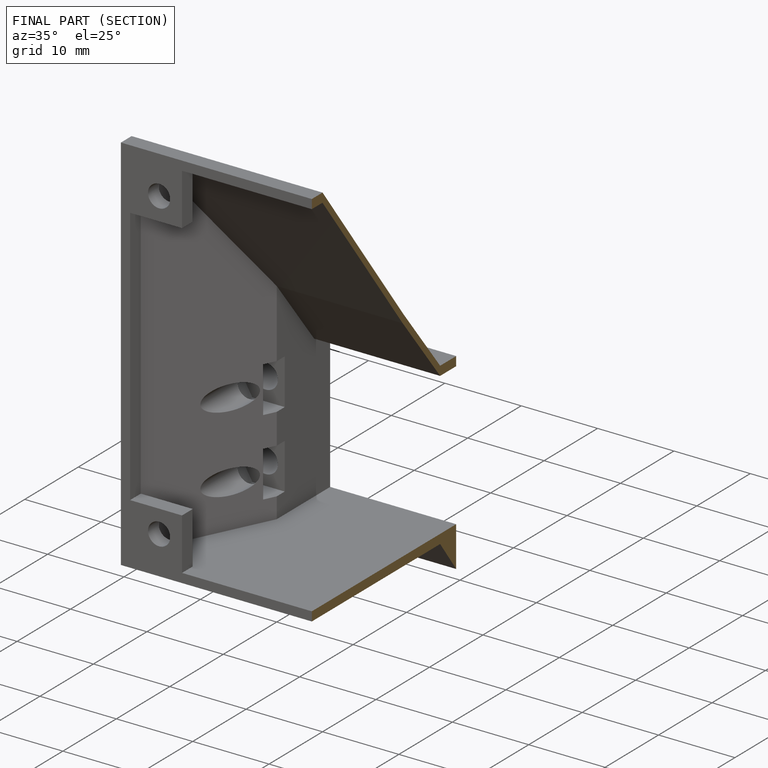
[diagram: finished part — half-section view (interior)]
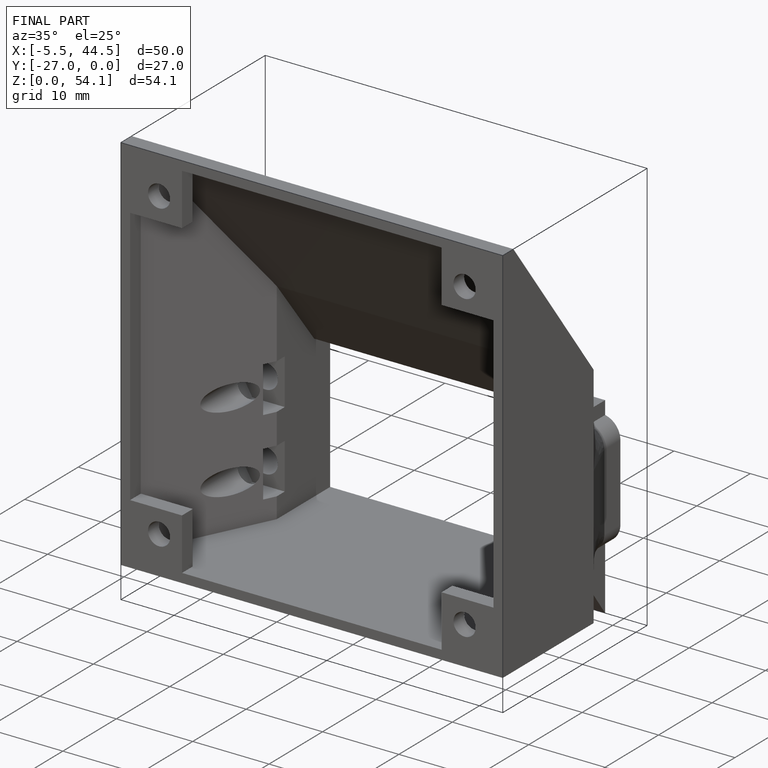
[diagram: finished part — iso view with bounding-box wireframe]
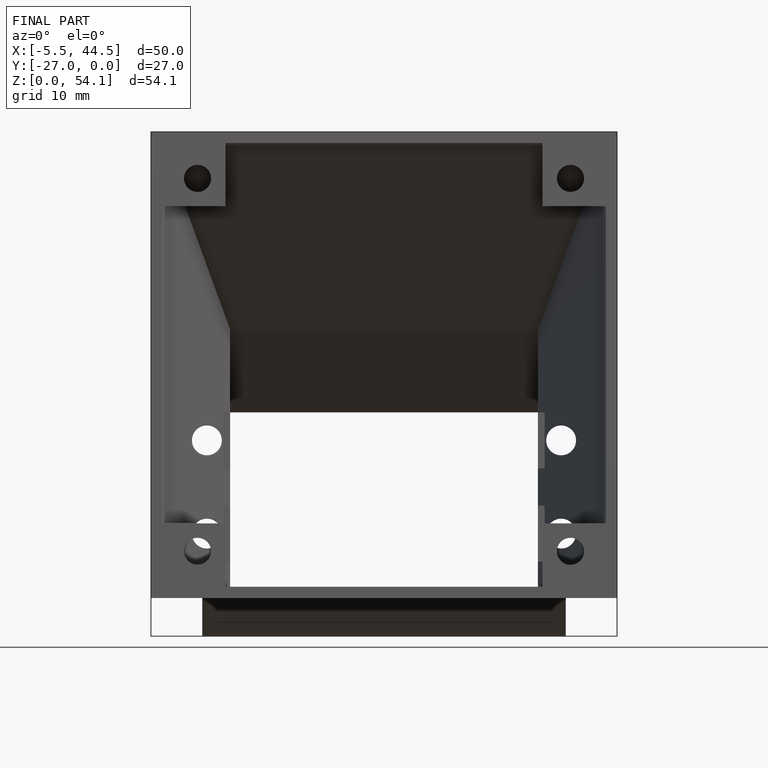
[diagram: finished part — front view with bounding-box wireframe]
